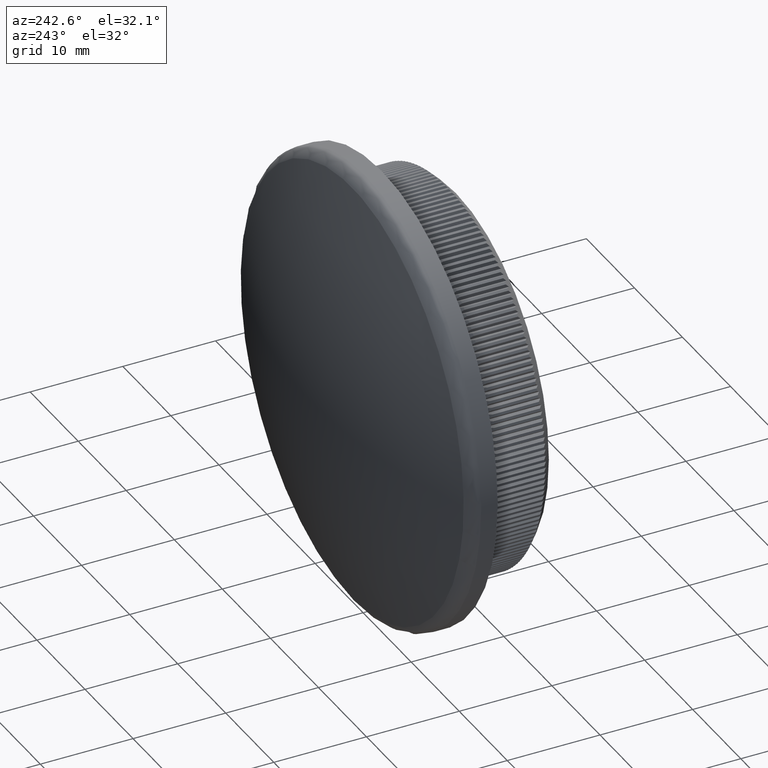
[diagram: clean part render]
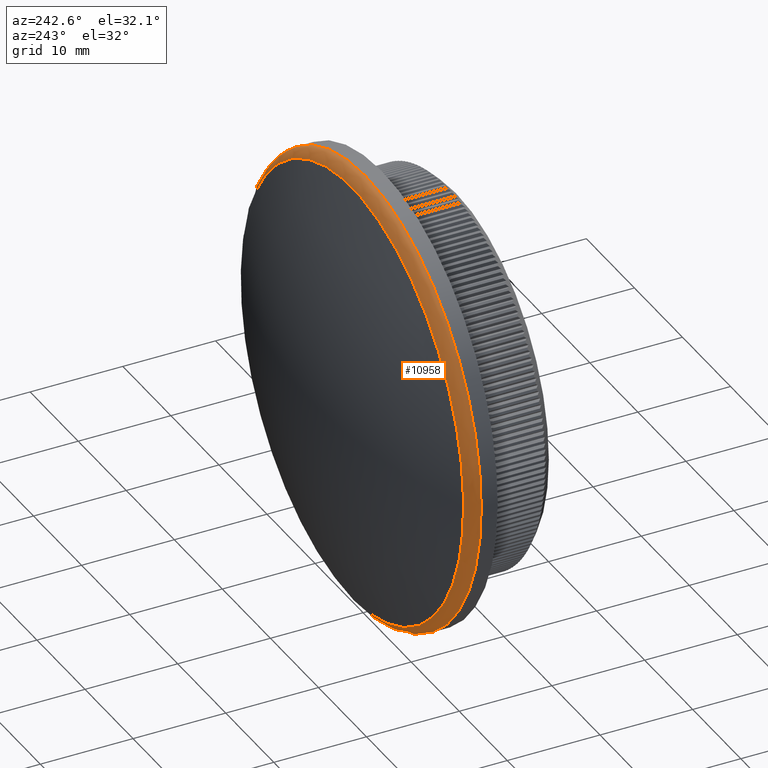
[diagram: same view with one face highlighted and labeled with its STEP entity id]
A machine part, auxiliary view. The second image highlights one B-rep face of the part: STEP entity #10958.
In plain terms, the highlighted toroidal blend (fillet) surface has major radius 22.65 mm and minor (blend) radius 1.5 mm.
Its self-contained STEP definition (entity closure, byte-faithful):
#1142 = VERTEX_POINT ( 'NONE', #20195 ) ;
#3154 = DIRECTION ( 'NONE',  ( -0.0000000000000000000, -1.000000000000000000, -0.0000000000000000000 ) ) ;
#3593 = DIRECTION ( 'NONE',  ( 0.0000000000000000000, 0.0000000000000000000, -1.000000000000000000 ) ) ;
#3915 = TOROIDAL_SURFACE ( 'NONE', #15079, 22.64999999999999900, 1.500000000000000000 ) ;
#5886 = AXIS2_PLACEMENT_3D ( 'NONE', #28763, #13628, #6191 ) ;
#6191 = DIRECTION ( 'NONE',  ( 0.0000000000000000000, 0.0000000000000000000, -1.000000000000000000 ) ) ;
#10743 = CIRCLE ( 'NONE', #17531, 24.15000000000000200 ) ;
#10958 = ADVANCED_FACE ( 'NONE', ( #29558, #22863 ), #3915, .T. ) ;
#11011 = DIRECTION ( 'NONE',  ( -0.0000000000000000000, -1.000000000000000000, -0.0000000000000000000 ) ) ;
#13207 = EDGE_LOOP ( 'NONE', ( #30808 ) ) ;
#13628 = DIRECTION ( 'NONE',  ( 0.0000000000000000000, 1.000000000000000000, 0.0000000000000000000 ) ) ;
#14664 = EDGE_LOOP ( 'NONE', ( #17326 ) ) ;
#15079 = AXIS2_PLACEMENT_3D ( 'NONE', #31358, #11011, #28866 ) ;
#15310 = EDGE_CURVE ( 'NONE', #1142, #1142, #20657, .T. ) ;
#15901 = CARTESIAN_POINT ( 'NONE',  ( 0.0000000000000000000, 9.780020886796899400, -24.15000000000000200 ) ) ;
#16422 = VERTEX_POINT ( 'NONE', #15901 ) ;
#17326 = ORIENTED_EDGE ( 'NONE', *, *, #15310, .F. ) ;
#17531 = AXIS2_PLACEMENT_3D ( 'NONE', #20864, #3154, #3593 ) ;
#20195 = CARTESIAN_POINT ( 'NONE',  ( 0.0000000000000000000, 11.17937736945556700, -23.19018648117216600 ) ) ;
#20657 = CIRCLE ( 'NONE', #5886, 23.19018648117216600 ) ;
#20864 = CARTESIAN_POINT ( 'NONE',  ( 0.0000000000000000000, 9.780020886796899400, 0.0000000000000000000 ) ) ;
#22863 = FACE_OUTER_BOUND ( 'NONE', #13207, .T. ) ;
#28763 = CARTESIAN_POINT ( 'NONE',  ( 0.0000000000000000000, 11.17937736945556700, 0.0000000000000000000 ) ) ;
#28866 = DIRECTION ( 'NONE',  ( 0.0000000000000000000, 0.0000000000000000000, -1.000000000000000000 ) ) ;
#29558 = FACE_OUTER_BOUND ( 'NONE', #14664, .T. ) ;
#30808 = ORIENTED_EDGE ( 'NONE', *, *, #31268, .F. ) ;
#31268 = EDGE_CURVE ( 'NONE', #16422, #16422, #10743, .T. ) ;
#31358 = CARTESIAN_POINT ( 'NONE',  ( 0.0000000000000000000, 9.780020886796899400, 0.0000000000000000000 ) ) ;